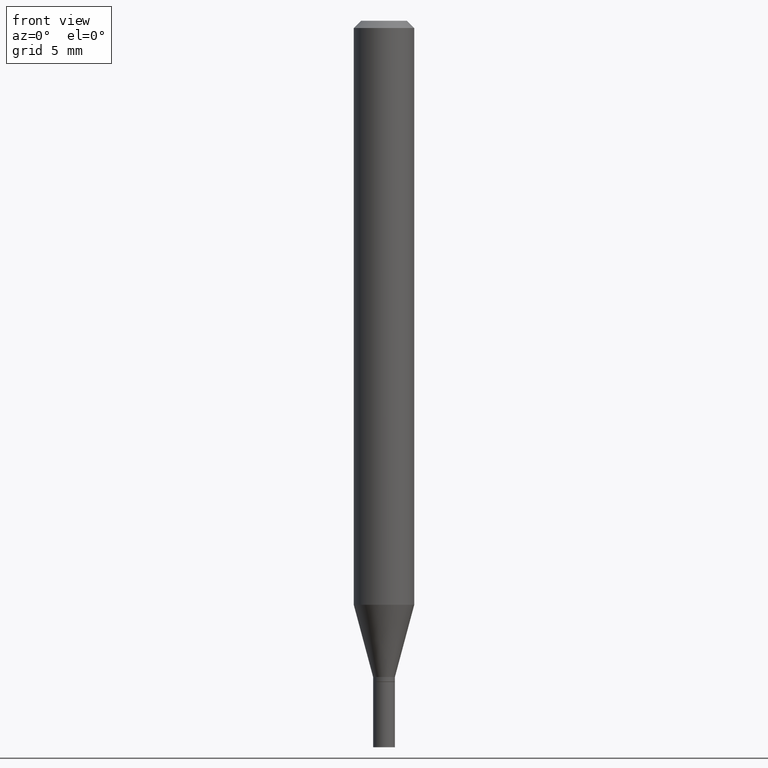
[diagram: clean part render]
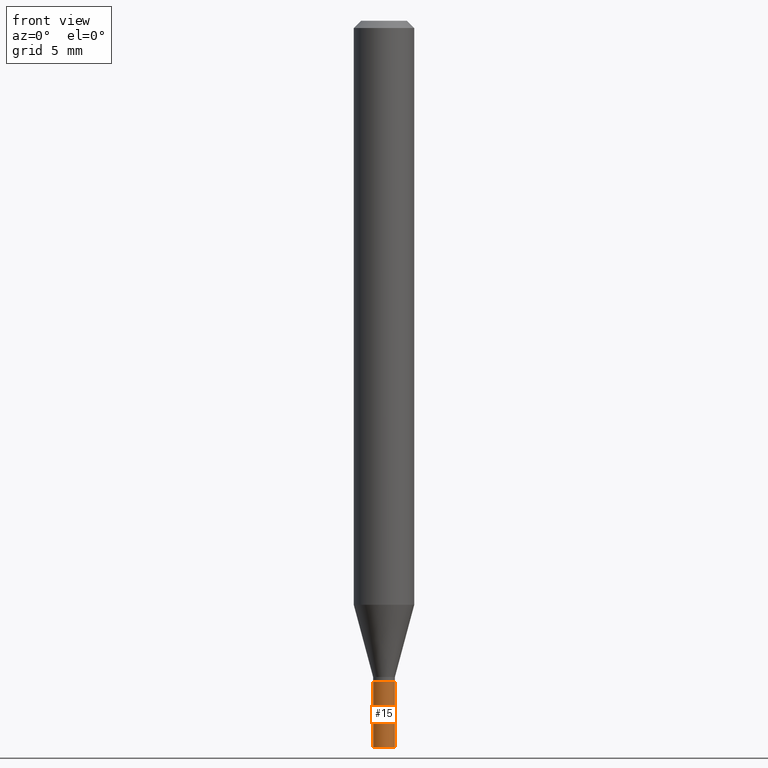
[diagram: same view with one face highlighted and labeled with its STEP entity id]
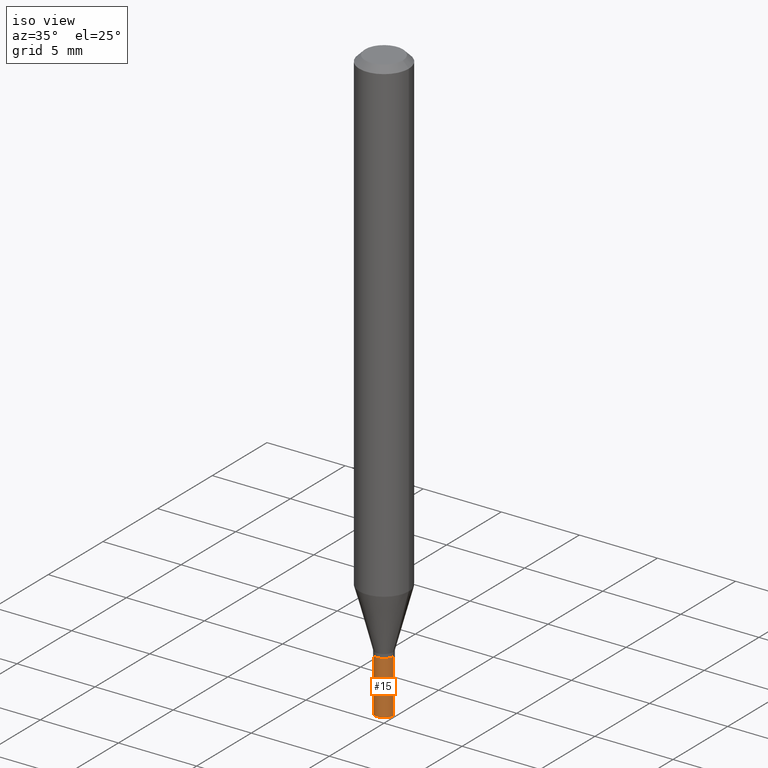
[diagram: same view with one face highlighted and labeled with its STEP entity id]
A machine part, front view. The second image highlights one B-rep face of the part: STEP entity #15.
A second angle (iso view) of the same face is appended — the face is thin or edge-on in the first view.
In plain terms, the highlighted cylindrical surface (edge-blend (fillet) strip) has radius 0.5715 mm, axis along (-0, 0, 1).
Its self-contained STEP definition (entity closure, byte-faithful):
#4 = VECTOR ( 'NONE', #171, 39.37007874015748143 ) ;
#5 = DIRECTION ( 'NONE',  ( 1.000000000000000000, -6.982962677686269077E-15, 0.000000000000000000 ) ) ;
#15 = ADVANCED_FACE ( 'NONE', ( #456 ), #418, .T. ) ;
#26 = CARTESIAN_POINT ( 'NONE',  ( -0.02249999999999999917, 1.598721155460225359E-16, -1.106760395307353780E-30 ) ) ;
#27 = LINE ( 'NONE', #26, #188 ) ;
#31 = EDGE_CURVE ( 'NONE', #187, #58, #27, .T. ) ;
#42 = CIRCLE ( 'NONE', #67, 0.02249999999999999917 ) ;
#58 = VERTEX_POINT ( 'NONE', #263 ) ;
#67 = AXIS2_PLACEMENT_3D ( 'NONE', #429, #359, #136 ) ;
#75 = CARTESIAN_POINT ( 'NONE',  ( 3.338064920442711836E-29, -4.765872027520893280E-15, -1.364999999999999991 ) ) ;
#81 = CARTESIAN_POINT ( 'NONE',  ( 0.02249999999999999917, -4.922988687768834913E-15, -1.364999999999999991 ) ) ;
#92 = ORIENTED_EDGE ( 'NONE', *, *, #31, .F. ) ;
#101 = VERTEX_POINT ( 'NONE', #81 ) ;
#131 = DIRECTION ( 'NONE',  ( -2.445468806185136877E-29, 3.491481338843145188E-15, 1.000000000000000000 ) ) ;
#136 = DIRECTION ( 'NONE',  ( 1.000000000000000000, -6.982962677686269077E-15, 0.000000000000000000 ) ) ;
#141 = AXIS2_PLACEMENT_3D ( 'NONE', #75, #289, #5 ) ;
#143 = CARTESIAN_POINT ( 'NONE',  ( -0.02249999999999999917, -4.841674902346784228E-15, -1.500000000000000222 ) ) ;
#147 = ORIENTED_EDGE ( 'NONE', *, *, #327, .F. ) ;
#166 = VERTEX_POINT ( 'NONE', #227 ) ;
#171 = DIRECTION ( 'NONE',  ( -2.445468806185136877E-29, 3.491481338843145188E-15, 1.000000000000000000 ) ) ;
#187 = VERTEX_POINT ( 'NONE', #143 ) ;
#188 = VECTOR ( 'NONE', #131, 39.37007874015748143 ) ;
#227 = CARTESIAN_POINT ( 'NONE',  ( 0.02249999999999999917, -5.394338668512659809E-15, -1.500000000000000222 ) ) ;
#254 = EDGE_CURVE ( 'NONE', #166, #101, #384, .T. ) ;
#263 = CARTESIAN_POINT ( 'NONE',  ( -0.02249999999999999917, -4.841674902346784228E-15, -1.364999999999999991 ) ) ;
#265 = EDGE_LOOP ( 'NONE', ( #92, #302, #410, #147 ) ) ;
#275 = CIRCLE ( 'NONE', #141, 0.02249999999999999917 ) ;
#289 = DIRECTION ( 'NONE',  ( -2.445468806185136597E-29, 3.491481338843145583E-15, 1.000000000000000000 ) ) ;
#302 = ORIENTED_EDGE ( 'NONE', *, *, #409, .T. ) ;
#327 = EDGE_CURVE ( 'NONE', #58, #101, #275, .T. ) ;
#346 = DIRECTION ( 'NONE',  ( -2.445468806185136597E-29, 3.491481338843145583E-15, 1.000000000000000000 ) ) ;
#349 = CARTESIAN_POINT ( 'NONE',  ( 0.000000000000000000, 0.000000000000000000, 0.000000000000000000 ) ) ;
#359 = DIRECTION ( 'NONE',  ( -2.445468806185136597E-29, 3.491481338843145583E-15, 1.000000000000000000 ) ) ;
#384 = LINE ( 'NONE', #413, #4 ) ;
#389 = AXIS2_PLACEMENT_3D ( 'NONE', #349, #346, #452 ) ;
#409 = EDGE_CURVE ( 'NONE', #187, #166, #42, .T. ) ;
#410 = ORIENTED_EDGE ( 'NONE', *, *, #254, .T. ) ;
#413 = CARTESIAN_POINT ( 'NONE',  ( 0.02249999999999999917, -1.571166602479409911E-16, 1.097139774554085483E-30 ) ) ;
#418 = CYLINDRICAL_SURFACE ( 'NONE', #389, 0.02249999999999999917 ) ;
#429 = CARTESIAN_POINT ( 'NONE',  ( 3.668203209277704895E-29, -5.237222008264718177E-15, -1.500000000000000222 ) ) ;
#452 = DIRECTION ( 'NONE',  ( 1.000000000000000000, -6.982962677686266711E-15, 4.876176775795935793E-29 ) ) ;
#456 = FACE_OUTER_BOUND ( 'NONE', #265, .T. ) ;